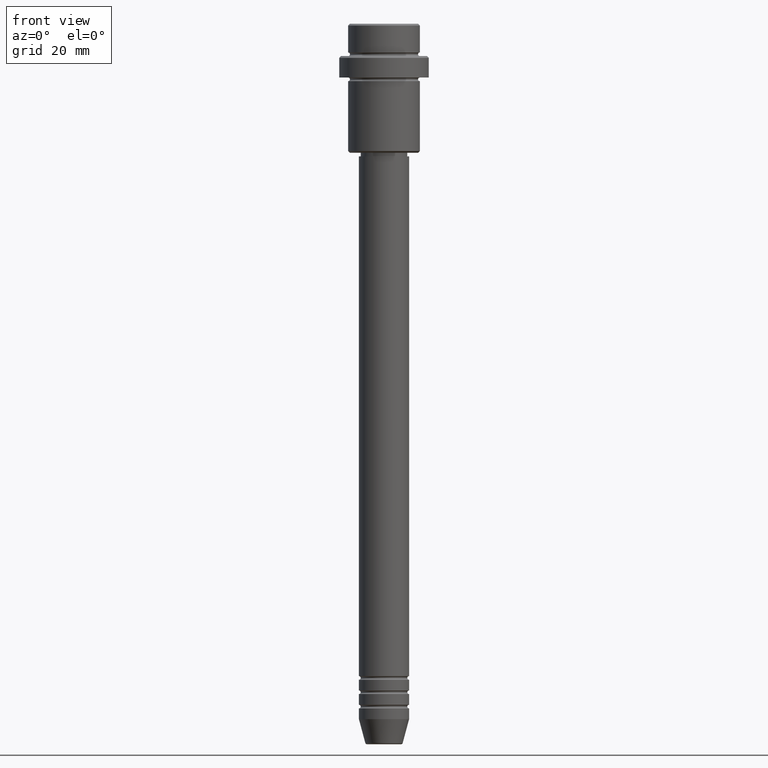
[diagram: clean part render]
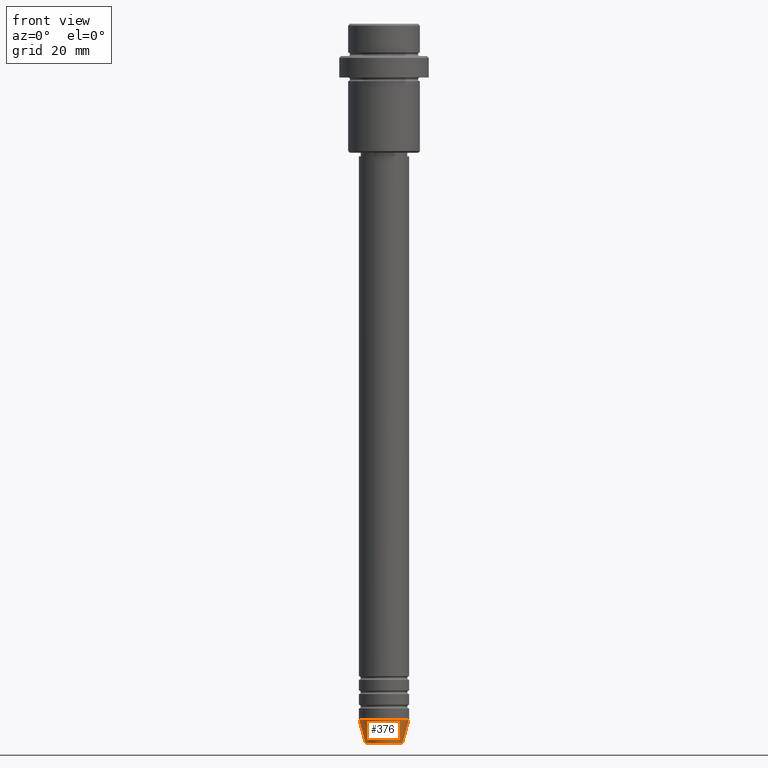
[diagram: same view with one face highlighted and labeled with its STEP entity id]
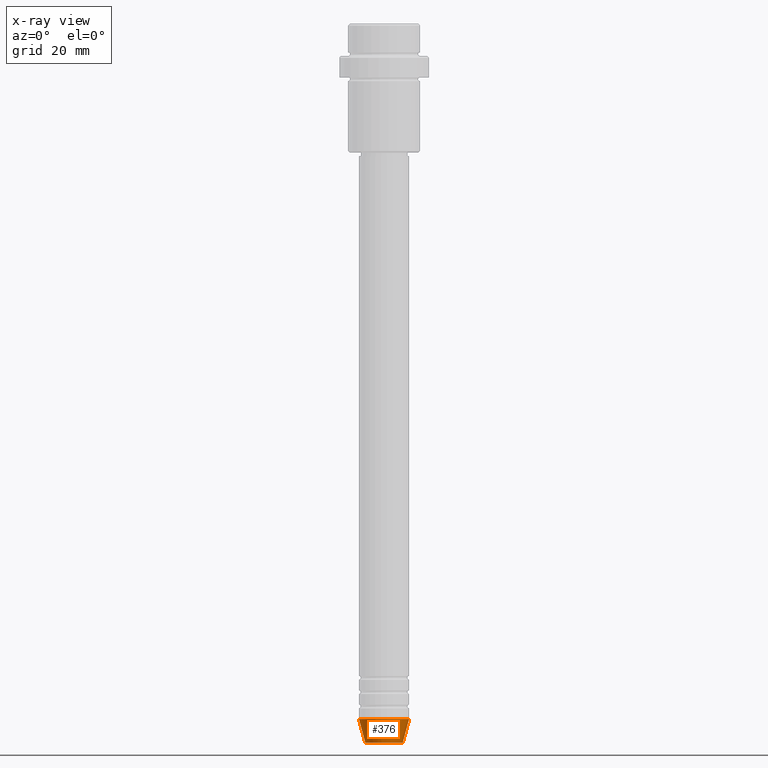
[diagram: x-ray of the same camera — body ghosted, the highlighted face saturated]
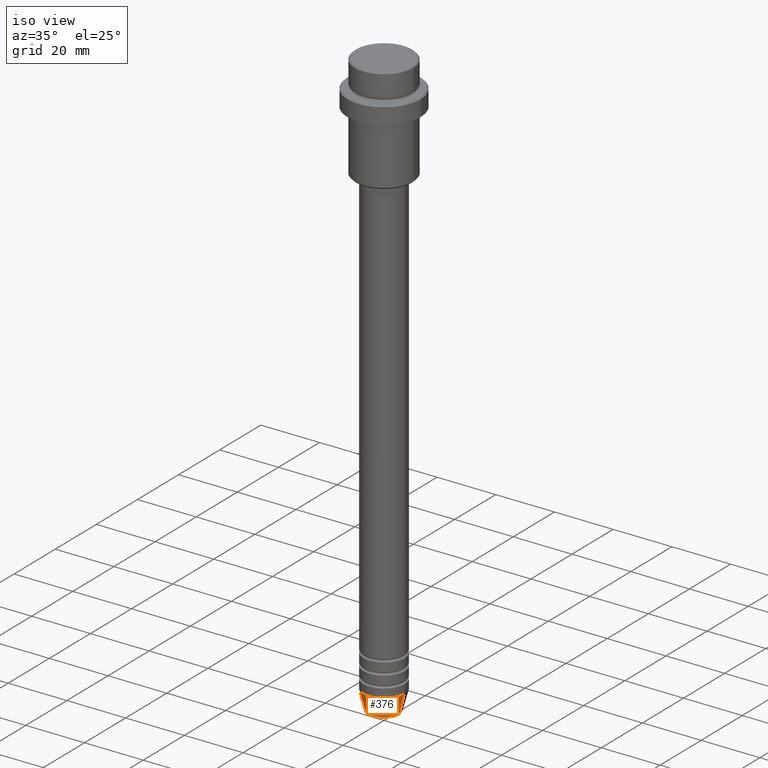
[diagram: same view with one face highlighted and labeled with its STEP entity id]
A machine part, front view. The second image highlights one B-rep face of the part: STEP entity #376.
The next image is the same camera in x-ray: the body ghosted, the highlighted face saturated — about 0% of this face is hidden behind the body in this view.
A second angle (iso view) of the same face is appended — the face is thin or edge-on in the first view.
In plain terms, the highlighted conical surface has half-angle 15 deg.
Its self-contained STEP definition (entity closure, byte-faithful):
#40 = DIRECTION ( 'NONE',  ( 1.000000000000000000, 0.000000000000000000, 0.000000000000000000 ) ) ;
#73 = CARTESIAN_POINT ( 'NONE',  ( 7.000000000000000000, 0.000000000000000000, -194.0000000000000000 ) ) ;
#74 = ORIENTED_EDGE ( 'NONE', *, *, #1272, .F. ) ;
#126 = CARTESIAN_POINT ( 'NONE',  ( 5.223655072137191269, 0.000000000000000000, -200.6294095225512706 ) ) ;
#131 = DIRECTION ( 'NONE',  ( -0.000000000000000000, -0.000000000000000000, 1.000000000000000000 ) ) ;
#155 = VERTEX_POINT ( 'NONE', #378 ) ;
#166 = LINE ( 'NONE', #73, #552 ) ;
#177 = CARTESIAN_POINT ( 'NONE',  ( -5.223655072137191269, 7.484830028987061160E-16, -200.6294095225512706 ) ) ;
#190 = CARTESIAN_POINT ( 'NONE',  ( -7.000000000000000000, 8.572527594031473190E-16, -194.0000000000000000 ) ) ;
#252 = DIRECTION ( 'NONE',  ( 1.000000000000000000, 0.000000000000000000, 0.000000000000000000 ) ) ;
#298 = EDGE_LOOP ( 'NONE', ( #908, #493, #1389, #74 ) ) ;
#376 = ADVANCED_FACE ( 'NONE', ( #1037 ), #689, .T. ) ;
#378 = CARTESIAN_POINT ( 'NONE',  ( -7.000000000000000000, 8.572527594031473190E-16, -194.0000000000000000 ) ) ;
#416 = AXIS2_PLACEMENT_3D ( 'NONE', #482, #131, #1357 ) ;
#456 = AXIS2_PLACEMENT_3D ( 'NONE', #808, #1241, #252 ) ;
#465 = DIRECTION ( 'NONE',  ( -0.000000000000000000, -0.000000000000000000, 1.000000000000000000 ) ) ;
#482 = CARTESIAN_POINT ( 'NONE',  ( 0.000000000000000000, 0.000000000000000000, -200.6294095225512706 ) ) ;
#493 = ORIENTED_EDGE ( 'NONE', *, *, #885, .T. ) ;
#500 = VERTEX_POINT ( 'NONE', #177 ) ;
#552 = VECTOR ( 'NONE', #1378, 1000.000000000000000 ) ;
#634 = EDGE_CURVE ( 'NONE', #500, #155, #973, .T. ) ;
#665 = CIRCLE ( 'NONE', #416, 5.223655072137191269 ) ;
#689 = CONICAL_SURFACE ( 'NONE', #456, 7.000000000000000000, 0.2617993877991501295 ) ;
#808 = CARTESIAN_POINT ( 'NONE',  ( 0.000000000000000000, 0.000000000000000000, -194.0000000000000000 ) ) ;
#837 = CARTESIAN_POINT ( 'NONE',  ( 7.000000000000000000, 0.000000000000000000, -194.0000000000000000 ) ) ;
#885 = EDGE_CURVE ( 'NONE', #500, #1203, #665, .T. ) ;
#908 = ORIENTED_EDGE ( 'NONE', *, *, #634, .F. ) ;
#912 = CIRCLE ( 'NONE', #1196, 7.000000000000000000 ) ;
#973 = LINE ( 'NONE', #190, #1320 ) ;
#1008 = CARTESIAN_POINT ( 'NONE',  ( 0.000000000000000000, 0.000000000000000000, -194.0000000000000000 ) ) ;
#1037 = FACE_OUTER_BOUND ( 'NONE', #298, .T. ) ;
#1196 = AXIS2_PLACEMENT_3D ( 'NONE', #1008, #465, #40 ) ;
#1203 = VERTEX_POINT ( 'NONE', #126 ) ;
#1241 = DIRECTION ( 'NONE',  ( -0.000000000000000000, -0.000000000000000000, 1.000000000000000000 ) ) ;
#1272 = EDGE_CURVE ( 'NONE', #155, #1293, #912, .T. ) ;
#1293 = VERTEX_POINT ( 'NONE', #837 ) ;
#1320 = VECTOR ( 'NONE', #1417, 1000.000000000000000 ) ;
#1357 = DIRECTION ( 'NONE',  ( 1.000000000000000000, 0.000000000000000000, 0.000000000000000000 ) ) ;
#1362 = EDGE_CURVE ( 'NONE', #1203, #1293, #166, .T. ) ;
#1378 = DIRECTION ( 'NONE',  ( 0.2588190451025214056, 0.000000000000000000, 0.9659258262890680902 ) ) ;
#1389 = ORIENTED_EDGE ( 'NONE', *, *, #1362, .T. ) ;
#1417 = DIRECTION ( 'NONE',  ( -0.2588190451025214056, 3.169619151431772953E-17, 0.9659258262890680902 ) ) ;